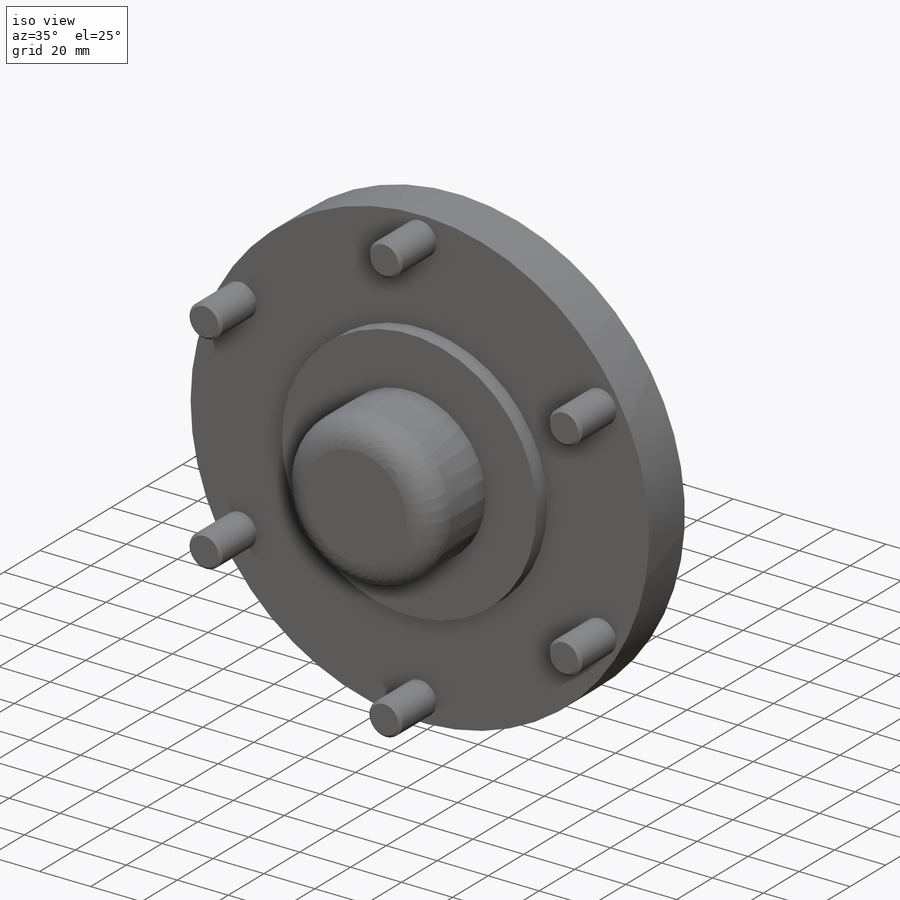
[diagram: iso view]
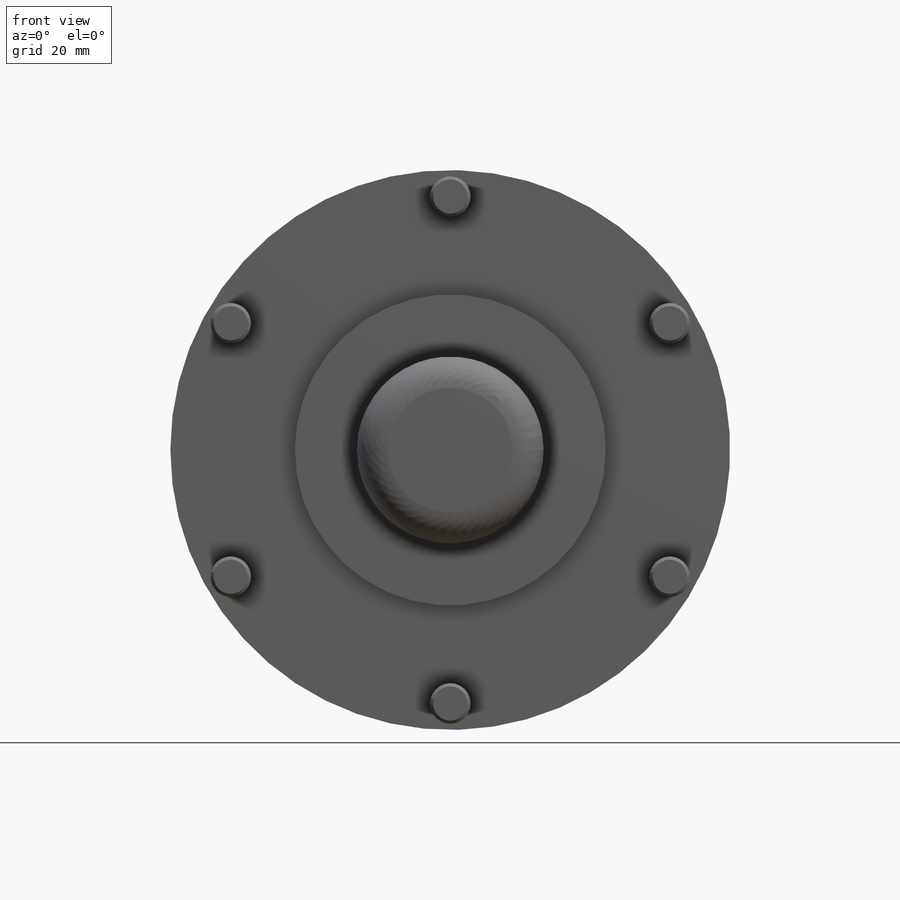
[diagram: front view]
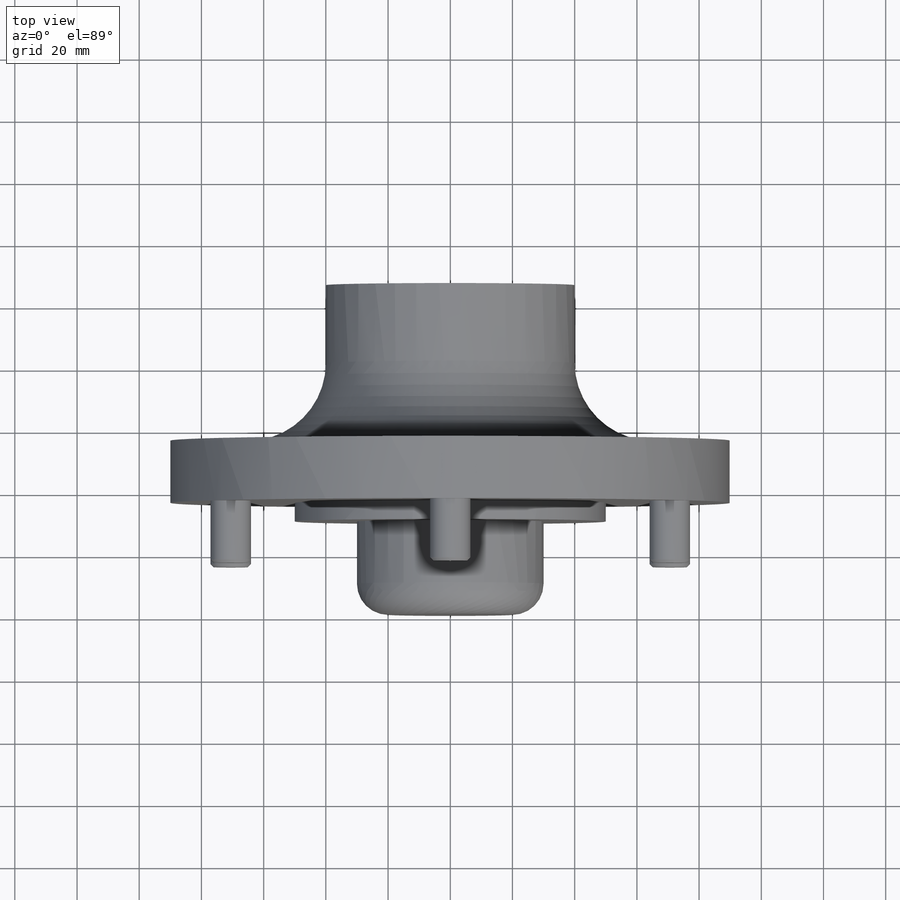
[diagram: top view]
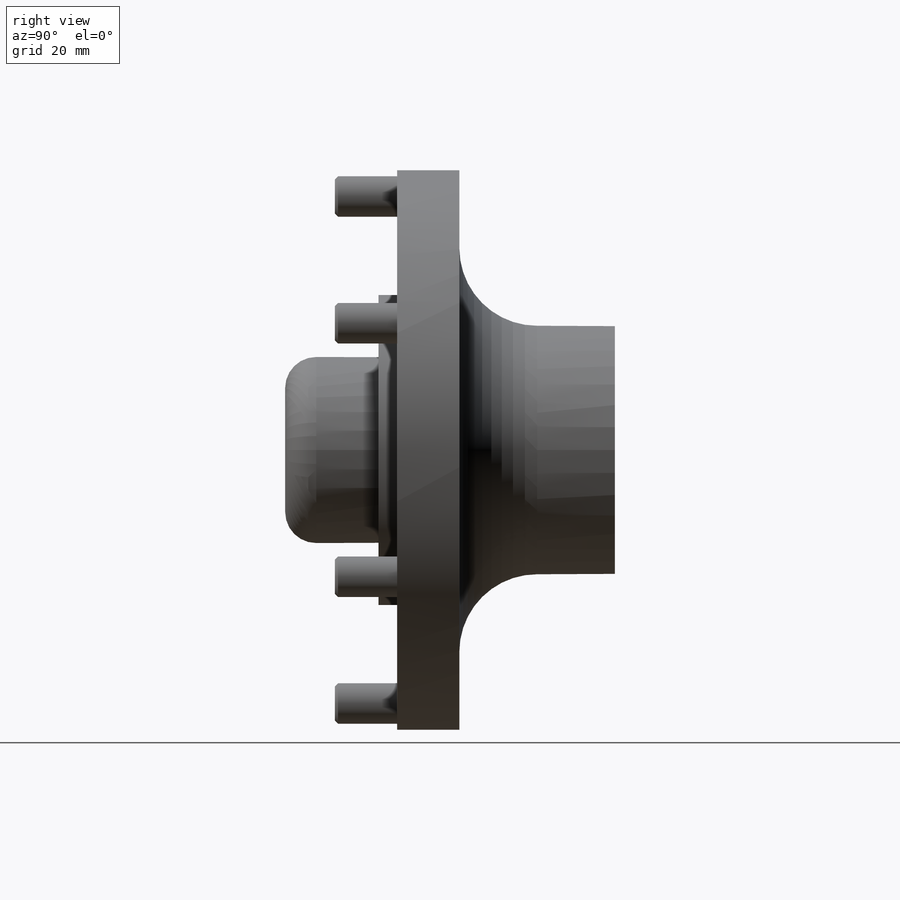
[diagram: right view]
SOLIDWORKS PART (.sldprt)
format: sldprt  version: not decoded by parser v0  size: 179,200 bytes
history: native  units: mm
features: sketch x2, material x1, revolve x1, extrude x1, fillet x1, chamfer x1 (+13 scaffold rows collapsed)
feature tree (20):
  scaffold x13  (default folders/planes/origin — collapsed)
  material  "Material <not specified>"
  sketch  "Sketch6"  dims[D1=76.0mm D2=30.0mm D3=30.0mm D4=30.0mm D5=10.0mm D6=50.0mm D7=50.0mm D8=20.0mm D9=40.0mm D10=30.0mm]
  revolve  "Revolve2"  Angle=360deg
  sketch  "Sketch7"  dims[c1.D2=13.0mm c1.D1=70.0mm c1.D3=70.0mm c2.D1=81.5mm c2.D3=6.0]
  extrude  "Boss-Extrude2"  Depth=20mm
  fillet  "Fillet2"  Radius=25mm
  chamfer  "Chamfer1"  Distance=1mm
decode coverage: 6 of 6 modeling features carry decoded parameters
note: suppression state not decoded; provenance and decode notes live in map.json
